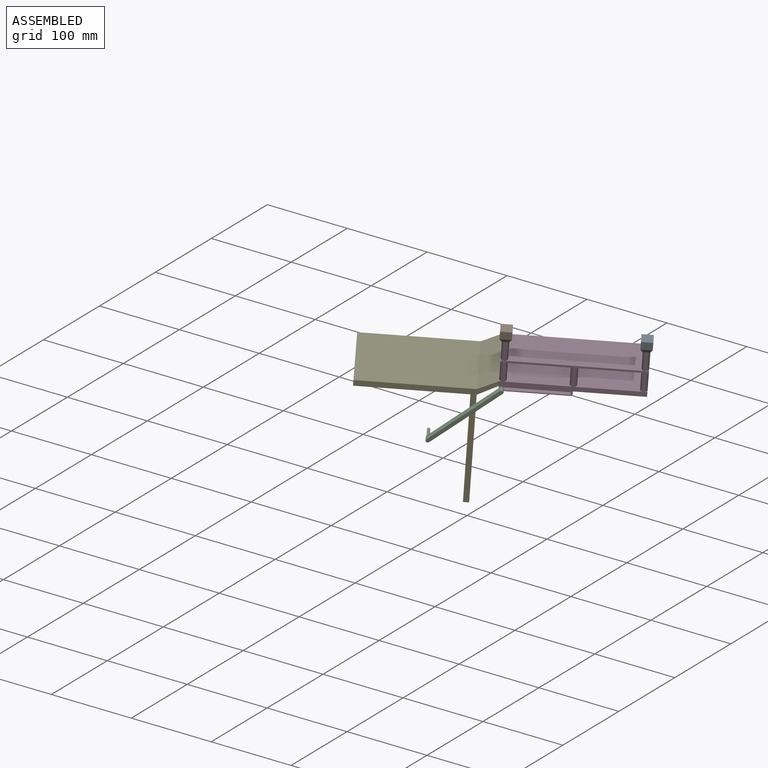
[diagram: assembled view]
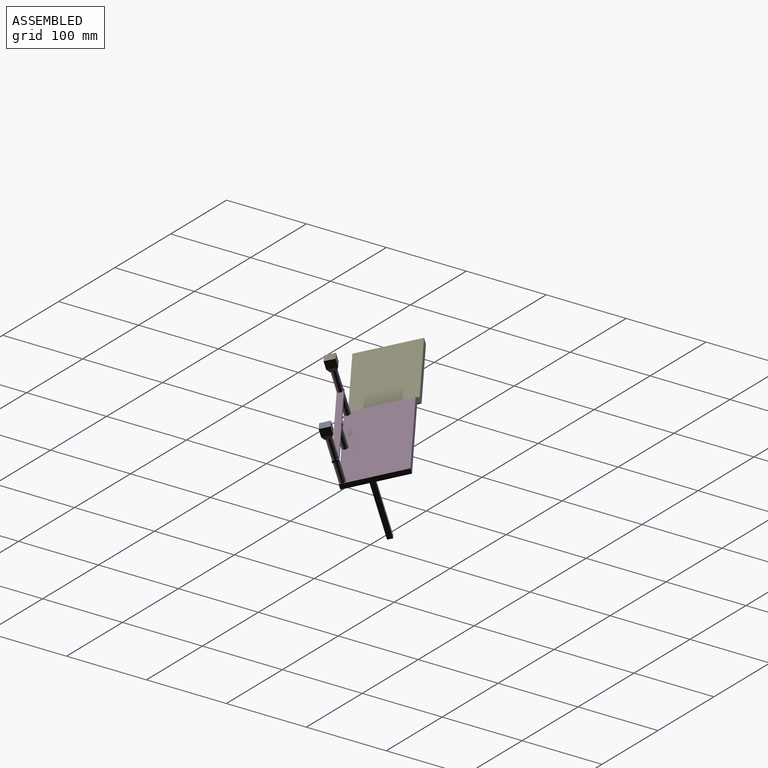
[diagram: assembled view, second angle]
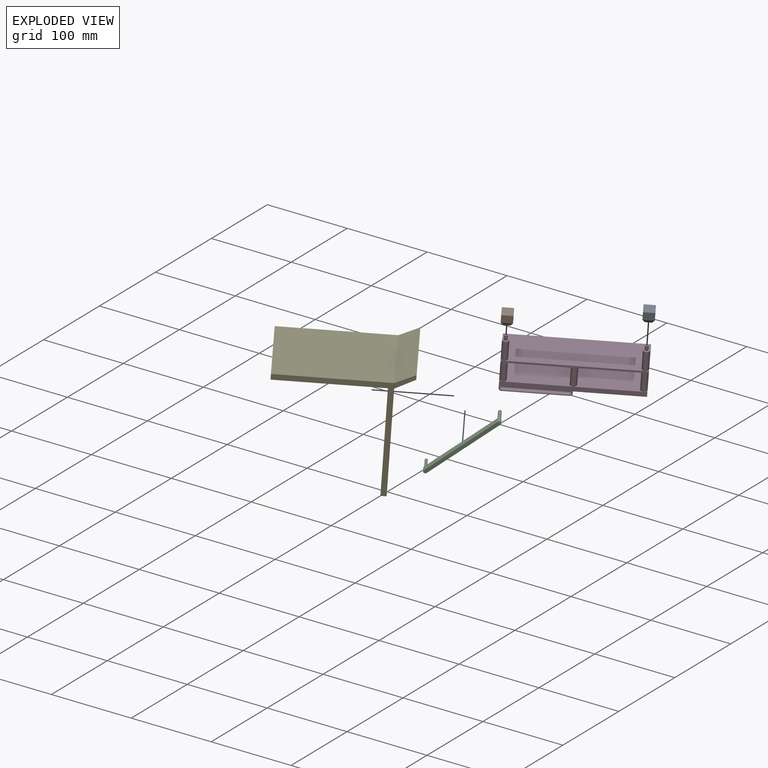
[diagram: exploded view]
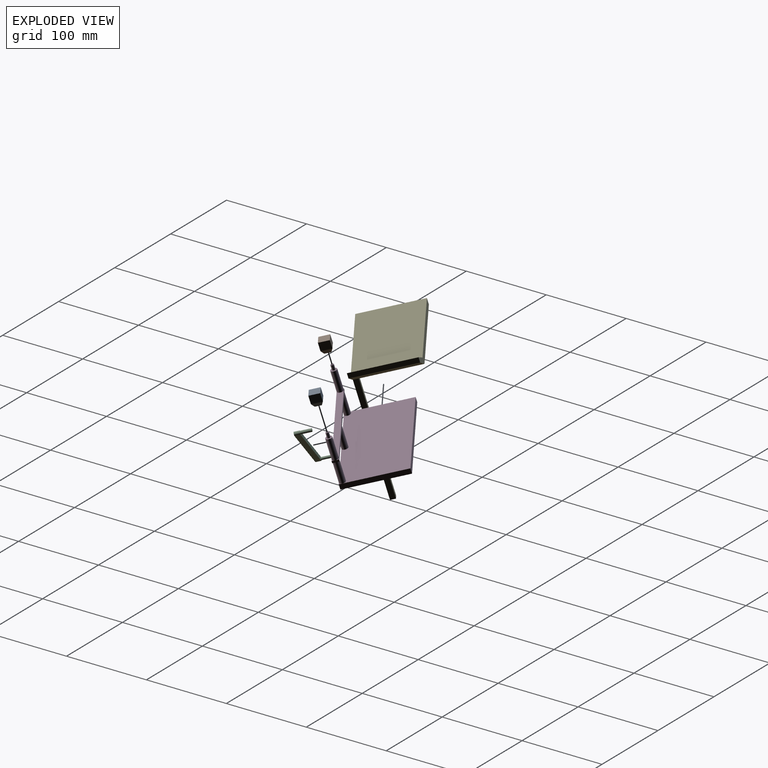
[diagram: exploded view, second angle]
ASSEMBLY  parts=5 mates=5
PART A: 12 faces, bbox 12.7x12.7x15.2 mm
  f0: plane 12.7x10.16mm, normal (1,0,0), area 129mm2, adj f1,f3,f4,f8
  f1: plane 12.7x10.16mm, normal (0,1,0), area 129mm2, adj f0,f2,f4,f10
  f2: plane 12.7x10.16mm, normal (-1,0,0), area 129mm2, adj f1,f3,f4,f11
  f3: plane 12.7x10.16mm, normal (0,-1,0), area 129mm2, adj f0,f2,f4,f9
  f4: plane 12.7x12.7mm, normal (0,0,1), area 161.3mm2, adj f0,f1,f2,f3
  f5: plane 7.62x7.62mm, normal (0,0,-1), area 53mm2, adj f6,f8,f9,f10,f11
  f6: cylinder r=1.27mm len=6.35mm, axis (0,0,-1), area 50.7mm2, adj f5,f7
  f7: plane 2.54x2.54mm, normal (0,0,-1), area 5.1mm2, adj f6
  f8: plane 12.7x5.08mm, normal (0.89,0,-0.45), area 57.7mm2, adj f0,f5,f9,f10
  f9: plane 12.7x5.08mm, normal (0,-0.89,-0.45), area 57.7mm2, adj f3,f5,f8,f11
  f10: plane 12.7x5.08mm, normal (0,0.89,-0.45), area 57.7mm2, adj f1,f5,f8,f11
  f11: plane 12.7x5.08mm, normal (-0.89,0,-0.45), area 57.7mm2, adj f2,f5,f9,f10
PART B: same geometry as A
PART C: 10 faces, bbox 76.4x19.1x76.4 mm
  f0: cylinder r=1.91mm len=12.7mm, axis (0,-1,0), area 152mm2, adj f1,f7
  f1: plane 3.81x3.81mm, normal (0,1,0), area 11.4mm2, adj f0
  f2: cylinder r=2.29mm len=6.35mm, axis (0,1,0), area 45.6mm2, adj f3,f5,f6,f7
  f3: plane 71.84x71.84mm, normal (-0.71,0,0.71), area 645.2mm2, adj f2,f4,f6,f7
  f4: cylinder r=2.29mm len=6.35mm, axis (0,1,0), area 45.6mm2, adj f3,f5,f6,f7
  f5: plane 71.84x71.84mm, normal (0.71,0,-0.71), area 645.2mm2, adj f2,f4,f6,f7
  f6: plane 76.41x76.41mm, normal (0,-1,0), area 480.9mm2, adj f2,f3,f4,f5
  f7: plane 76.41x76.41mm, normal (0,1,0), area 461.6mm2, adj f0,f2,f3,f4,f5,f8
  f8: cylinder r=1.59mm len=12.7mm, axis (0,-1,0), area 127.2mm2, adj f7,f9
  f9: plane 3.19x3.19mm, normal (0,1,0), area 8mm2, adj f8
PART D: 42 faces, bbox 152.4x76.2x72.4 mm
  f0: plane 152.4x76.2mm, normal (0,0,-1), area 11080.6mm2, adj f7,f8,f9,f10,f35,f40,f41
  f1: plane 3.81x3.81mm, normal (0,0,1), area 3.1mm2, adj f21,f24,f28
  f2: plane 144.78x7.62mm, normal (0,0,1), area 1057.6mm2, adj f21,f23,f26,f28
  f3: plane 3.81x3.81mm, normal (0,0,1), area 3.1mm2, adj f22,f23,f26
  f4: plane 3.81x3.81mm, normal (0,0,1), area 3.1mm2, adj f21,f22,f26
  f5: plane 152.4x76.2mm, normal (0,0,1), area 11469.8mm2, adj f7,f8,f9,f10,f12,f13,f14
  f6: plane 3.81x3.81mm, normal (0,0,1), area 3.1mm2, adj f8,f9,f12
  f7: plane 152.4x6.35mm, normal (0,1,0), area 967.7mm2, adj f0,f5,f8,f10
  f8: plane 76.2x6.35mm, normal (-1,0,0), area 483.9mm2, adj f0,f5,f6,f7,f9
  f9: plane 152.4x12.7mm, normal (0,-1,0), area 1165.4mm2, adj f0,f5,f6,f8,f10,f11,f34,f35
  f10: plane 76.2x6.35mm, normal (1,0,0), area 483.9mm2, adj f0,f5,f7,f9,f11
  f11: plane 3.81x3.81mm, normal (0,0,1), area 3.1mm2, adj f9,f10,f13
  f12: cylinder r=3.81mm len=25.4mm, axis (0,0,-1), area 608mm2, adj f5,f6,f15,f16,f17
  f13: cylinder r=3.81mm len=25.4mm, axis (0,0,-1), area 608mm2, adj f5,f11,f18,f19,f20
  f14: cylinder r=3.81mm len=25.4mm, axis (0,0,-1), area 608mm2, adj f5,f17,f19
  f15: plane 3.81x3.81mm, normal (0,0,-1), area 3.1mm2, adj f12,f21,f22
  f16: plane 3.81x3.81mm, normal (0,0,-1), area 3.1mm2, adj f12,f22,f23
  f17: plane 72.39x7.62mm, normal (0,0,-1), area 506mm2, adj f12,f14,f21,f23
  f18: plane 3.81x3.81mm, normal (0,0,-1), area 3.1mm2, adj f13,f21,f24
  f19: plane 72.39x7.62mm, normal (0,0,-1), area 506mm2, adj f13,f14,f21,f23
  f20: plane 3.81x3.81mm, normal (0,0,-1), area 3.1mm2, adj f13,f23,f24
  f21: plane 152.4x2.54mm, normal (0,1,0), area 387.1mm2, adj f1,f2,f4,f15,f17,f18,f19,f22
  f22: plane 7.62x2.54mm, normal (-1,0,0), area 19.4mm2, adj f3,f4,f15,f16,f21,f23
  f23: plane 152.4x2.54mm, normal (0,-1,0), area 387.1mm2, adj f2,f3,f16,f17,f19,f20,f22,f24
  f24: plane 7.62x2.54mm, normal (1,0,0), area 19.4mm2, adj f1,f18,f20,f21,f23,f25
  f25: plane 3.81x3.81mm, normal (0,0,1), area 3.1mm2, adj f23,f24,f28
  f26: cylinder r=3.81mm len=25.4mm, axis (0,0,-1), area 608mm2, adj f2,f3,f4,f27
  f27: plane 7.62x7.62mm, normal (0,0,1), area 34.2mm2, adj f26,f30
  f28: cylinder r=3.81mm len=25.4mm, axis (0,0,-1), area 608mm2, adj f1,f2,f25,f29
  f29: plane 7.62x7.62mm, normal (0,0,1), area 34.2mm2, adj f28,f32
  f30: cylinder r=1.91mm len=6.35mm, axis (0,0,-1), area 76mm2, adj f27,f31
  f31: plane 3.81x3.81mm, normal (0,0,1), area 11.4mm2, adj f30
  f32: cylinder r=1.91mm len=6.35mm, axis (0,0,-1), area 76mm2, adj f29,f33
  f33: plane 3.81x3.81mm, normal (0,0,1), area 11.4mm2, adj f32
  f34: plane 69.85x7.62mm, normal (0,0,-1), area 532.3mm2, adj f9,f35,f40,f41
  f35: cylinder r=3.17mm len=7.62mm, axis (0,-1,0), area 76mm2, adj f0,f9,f34,f41
  f36: cylinder r=1.91mm len=7.62mm, axis (0,-1,0), area 45.6mm2, adj f9,f37,f39,f41
  f37: plane 69.85x7.62mm, normal (0,0,1), area 532.3mm2, adj f9,f36,f38,f41
  f38: cylinder r=1.91mm len=7.62mm, axis (0,-1,0), area 45.6mm2, adj f9,f37,f39,f41
  f39: plane 69.85x7.62mm, normal (0,0,-1), area 532.3mm2, adj f9,f36,f38,f41
  f40: cylinder r=3.17mm len=7.62mm, axis (0,-1,0), area 76mm2, adj f0,f9,f34,f41
  f41: plane 76.2x6.35mm, normal (0,1,0), area 197.7mm2, adj f0,f34,f35,f36,f37,f38,f39,f40
PART E: 12 faces, bbox 149x76.2x165.1 mm
  f0: plane 127x76.2mm, normal (0,0,-1), area 9637.1mm2, adj f3,f4,f6,f7,f9,f10
  f1: plane 76.2x22mm, normal (-0.5,0,0.87), area 1935.5mm2, adj f2,f5,f6,f7
  f2: plane 127x76.2mm, normal (0,0,1), area 9677.4mm2, adj f1,f3,f6,f7
  f3: plane 76.2x7.62mm, normal (-1,0,0), area 580.6mm2, adj f0,f2,f6,f7
  f4: plane 76.2x22mm, normal (0.54,0,-0.84), area 1985.6mm2, adj f0,f5,f6,f7,f8
  f5: plane 76.2x6.35mm, normal (1,0,0), area 483.9mm2, adj f1,f4,f6,f7
  f6: plane 149x20.32mm, normal (0,1,0), area 1121.4mm2, adj f0,f1,f2,f3,f4,f5
  f7: plane 165.1x149mm, normal (0,-1,0), area 2040.7mm2, adj f0,f1,f2,f3,f4,f5,f8,f10
  f8: plane 144.78x6.35mm, normal (1,0,0), area 919.4mm2, adj f4,f7,f9,f11
  f9: plane 144.78x6.35mm, normal (0,1,0), area 919.4mm2, adj f0,f8,f10,f11
  f10: plane 144.78x6.35mm, normal (-1,0,0), area 919.4mm2, adj f0,f7,f9,f11
  f11: plane 6.35x6.35mm, normal (0,0,-1), area 40.3mm2, adj f7,f8,f9,f10
PLACE A rot(axis=(0.38,0.22,0.9),35.9deg) t=(-224.81,-29.27,6.96)mm
PLACE B rot(axis=(0.38,0.22,0.9),35.9deg) t=(-346.01,-107.92,16.31)mm
PLACE C rot(axis=(0.38,0.22,0.9),35.9deg) t=(-356.82,-99.74,-45.2)mm
PLACE D rot(axis=(0.38,0.22,0.9),35.9deg) t=(-293.83,-61.84,-40.74)mm
PLACE E rot(axis=(0.38,0.22,0.9),35.9deg) t=(-379.99,-111.42,-53.98)mm
MATE fastened D.f8 <-> E.f5  axis (-0.84,-0.54,0.06) through (-377.72,-71.44,-28.95)mm
MATE revolute D.f38 <-> C.f0  axis (0.51,-0.82,-0.26) through (-356.82,-99.74,-45.2)mm
MATE fastened A.f6 <-> D.f13  axis (-0.19,0.19,-0.96) through (-223.58,-30.45,13.07)mm
MATE pin_slot C.f0 <-> D.f38  axis (0.51,-0.82,-0.26) through (-356.82,-99.74,-45.2)mm
MATE fastened D.f12 <-> B.f6  axis (0.19,-0.19,0.96) through (-344.77,-109.1,22.42)mm
